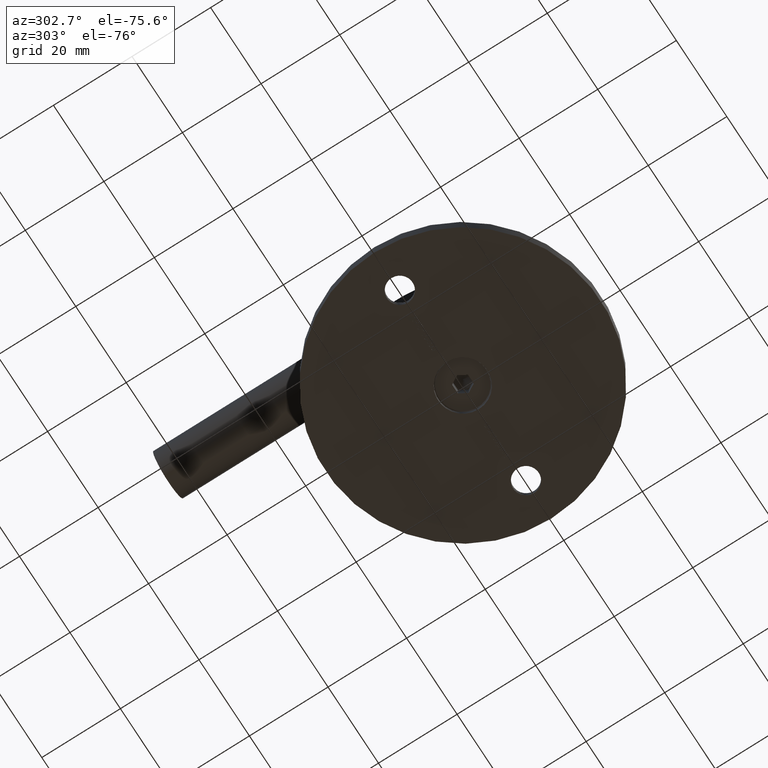
[diagram: clean part render]
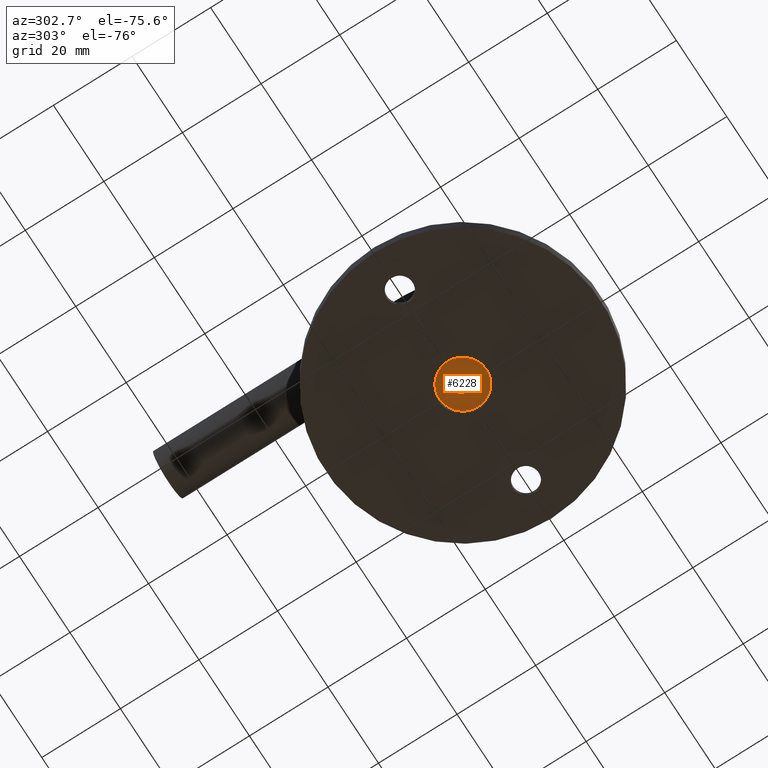
[diagram: same view with one face highlighted and labeled with its STEP entity id]
A machine part, auxiliary view. The second image highlights one B-rep face of the part: STEP entity #6228.
In plain terms, the highlighted planar face has unit normal (0, 0, -1).
Its self-contained STEP definition (entity closure, byte-faithful):
#146 = EDGE_LOOP ( 'NONE', ( #3582, #13804 ) ) ;
#216 = FACE_OUTER_BOUND ( 'NONE', #146, .T. ) ;
#303 = VECTOR ( 'NONE', #12172, 1000.000000000000114 ) ;
#681 = VECTOR ( 'NONE', #9736, 1000.000000000000000 ) ;
#1495 = EDGE_CURVE ( 'NONE', #5920, #9185, #3599, .T. ) ;
#1723 = DIRECTION ( 'NONE',  ( -0.5000000000000000000, 0.8660254037844385966, 0.000000000000000000 ) ) ;
#2047 = DIRECTION ( 'NONE',  ( -1.000000000000000000, 0.000000000000000000, 0.000000000000000000 ) ) ;
#2341 = EDGE_CURVE ( 'NONE', #13853, #3528, #11487, .T. ) ;
#2392 = AXIS2_PLACEMENT_3D ( 'NONE', #11544, #7796, #5488 ) ;
#2842 = EDGE_CURVE ( 'NONE', #3528, #14572, #6261, .T. ) ;
#3028 = CARTESIAN_POINT ( 'NONE',  ( -1.154700538379251240, -2.000000000000000000, 0.000000000000000000 ) ) ;
#3052 = PLANE ( 'NONE',  #15898 ) ;
#3091 = VERTEX_POINT ( 'NONE', #11676 ) ;
#3231 = CARTESIAN_POINT ( 'NONE',  ( 7.347880794884119736E-16, -6.000000000000000000, -1.714505518806294638E-15 ) ) ;
#3396 = CARTESIAN_POINT ( 'NONE',  ( 2.309401076758503368, -7.663768605383772688E-18, -0.000000000000000000 ) ) ;
#3528 = VERTEX_POINT ( 'NONE', #14646 ) ;
#3582 = ORIENTED_EDGE ( 'NONE', *, *, #5469, .T. ) ;
#3599 = LINE ( 'NONE', #12691, #13210 ) ;
#3732 = VECTOR ( 'NONE', #2047, 1000.000000000000000 ) ;
#3750 = EDGE_CURVE ( 'NONE', #6002, #11124, #14898, .T. ) ;
#3856 = CARTESIAN_POINT ( 'NONE',  ( -1.154700538379250352, 2.000000000000000000, 0.000000000000000000 ) ) ;
#4285 = CIRCLE ( 'NONE', #6433, 6.000000000000000000 ) ;
#4294 = ORIENTED_EDGE ( 'NONE', *, *, #10870, .F. ) ;
#4349 = DIRECTION ( 'NONE',  ( 0.000000000000000000, 1.000000000000000000, 1.224646799147353207E-16 ) ) ;
#4465 = DIRECTION ( 'NONE',  ( -0.000000000000000000, 1.224646799147353207E-16, -1.000000000000000000 ) ) ;
#4711 = LINE ( 'NONE', #11332, #14535 ) ;
#4743 = ORIENTED_EDGE ( 'NONE', *, *, #15469, .F. ) ;
#5075 = LINE ( 'NONE', #8059, #3732 ) ;
#5469 = EDGE_CURVE ( 'NONE', #11124, #6002, #4285, .T. ) ;
#5488 = DIRECTION ( 'NONE',  ( 0.000000000000000000, 1.000000000000000000, 1.224646799147353207E-16 ) ) ;
#5694 = DIRECTION ( 'NONE',  ( 0.000000000000000000, 1.000000000000000000, 1.224646799147353207E-16 ) ) ;
#5920 = VERTEX_POINT ( 'NONE', #3028 ) ;
#6002 = VERTEX_POINT ( 'NONE', #3231 ) ;
#6228 = ADVANCED_FACE ( 'NONE', ( #10450, #216 ), #3052, .T. ) ;
#6261 = LINE ( 'NONE', #10873, #303 ) ;
#6433 = AXIS2_PLACEMENT_3D ( 'NONE', #11679, #15463, #4349 ) ;
#7286 = ORIENTED_EDGE ( 'NONE', *, *, #2341, .F. ) ;
#7714 = CARTESIAN_POINT ( 'NONE',  ( -2.309401076758503368, 8.673617379884035472E-16, -4.898587196589411843E-16 ) ) ;
#7796 = DIRECTION ( 'NONE',  ( -0.000000000000000000, 1.224646799147353207E-16, -1.000000000000000000 ) ) ;
#8059 = CARTESIAN_POINT ( 'NONE',  ( 1.154700538379251462, -2.000000000000000000, -0.000000000000000000 ) ) ;
#9104 = CARTESIAN_POINT ( 'NONE',  ( 2.309401076758503368, -7.663768605383772688E-18, -0.000000000000000000 ) ) ;
#9185 = VERTEX_POINT ( 'NONE', #7714 ) ;
#9736 = DIRECTION ( 'NONE',  ( -0.5000000000000001110, -0.8660254037844385966, 0.000000000000000000 ) ) ;
#10421 = ORIENTED_EDGE ( 'NONE', *, *, #2842, .F. ) ;
#10450 = FACE_BOUND ( 'NONE', #12367, .T. ) ;
#10554 = CARTESIAN_POINT ( 'NONE',  ( 0.000000000000000000, 6.000000000000000000, 2.449293598294706907E-16 ) ) ;
#10870 = EDGE_CURVE ( 'NONE', #9185, #13853, #4711, .T. ) ;
#10873 = CARTESIAN_POINT ( 'NONE',  ( 1.154700538379252350, 1.999999999999999112, 0.000000000000000000 ) ) ;
#11124 = VERTEX_POINT ( 'NONE', #13557 ) ;
#11184 = DIRECTION ( 'NONE',  ( 1.000000000000000000, -3.755786496842899550E-16, 0.000000000000000000 ) ) ;
#11332 = CARTESIAN_POINT ( 'NONE',  ( -2.309401076758503368, 9.199500237803651153E-16, 0.000000000000000000 ) ) ;
#11487 = LINE ( 'NONE', #13529, #14961 ) ;
#11544 = CARTESIAN_POINT ( 'NONE',  ( 0.000000000000000000, 1.199807826129486086E-31, -9.797174393178825657E-16 ) ) ;
#11663 = LINE ( 'NONE', #3396, #681 ) ;
#11676 = CARTESIAN_POINT ( 'NONE',  ( 1.154700538379251462, -2.000000000000000000, -0.000000000000000000 ) ) ;
#11679 = CARTESIAN_POINT ( 'NONE',  ( 0.000000000000000000, 1.199807826129486086E-31, -9.797174393178825657E-16 ) ) ;
#11933 = EDGE_CURVE ( 'NONE', #3091, #5920, #5075, .T. ) ;
#12172 = DIRECTION ( 'NONE',  ( 0.4999999999999999445, -0.8660254037844385966, -0.000000000000000000 ) ) ;
#12367 = EDGE_LOOP ( 'NONE', ( #13827, #13225, #4743, #10421, #7286, #4294 ) ) ;
#12552 = DIRECTION ( 'NONE',  ( 0.5000000000000006661, 0.8660254037844382635, 0.000000000000000000 ) ) ;
#12691 = CARTESIAN_POINT ( 'NONE',  ( -1.154700538379251240, -2.000000000000000000, 0.000000000000000000 ) ) ;
#13210 = VECTOR ( 'NONE', #1723, 1000.000000000000227 ) ;
#13225 = ORIENTED_EDGE ( 'NONE', *, *, #11933, .F. ) ;
#13529 = CARTESIAN_POINT ( 'NONE',  ( -1.154700538379250352, 2.000000000000000000, 0.000000000000000000 ) ) ;
#13557 = CARTESIAN_POINT ( 'NONE',  ( 0.000000000000000000, 6.000000000000000000, -2.449293598294705921E-16 ) ) ;
#13804 = ORIENTED_EDGE ( 'NONE', *, *, #3750, .T. ) ;
#13827 = ORIENTED_EDGE ( 'NONE', *, *, #1495, .F. ) ;
#13853 = VERTEX_POINT ( 'NONE', #3856 ) ;
#14535 = VECTOR ( 'NONE', #12552, 1000.000000000000114 ) ;
#14572 = VERTEX_POINT ( 'NONE', #9104 ) ;
#14646 = CARTESIAN_POINT ( 'NONE',  ( 1.154700538379252350, 1.999999999999999112, 0.000000000000000000 ) ) ;
#14898 = CIRCLE ( 'NONE', #2392, 6.000000000000000000 ) ;
#14961 = VECTOR ( 'NONE', #11184, 1000.000000000000000 ) ;
#15463 = DIRECTION ( 'NONE',  ( -0.000000000000000000, 1.224646799147353207E-16, -1.000000000000000000 ) ) ;
#15469 = EDGE_CURVE ( 'NONE', #14572, #3091, #11663, .T. ) ;
#15898 = AXIS2_PLACEMENT_3D ( 'NONE', #10554, #4465, #5694 ) ;